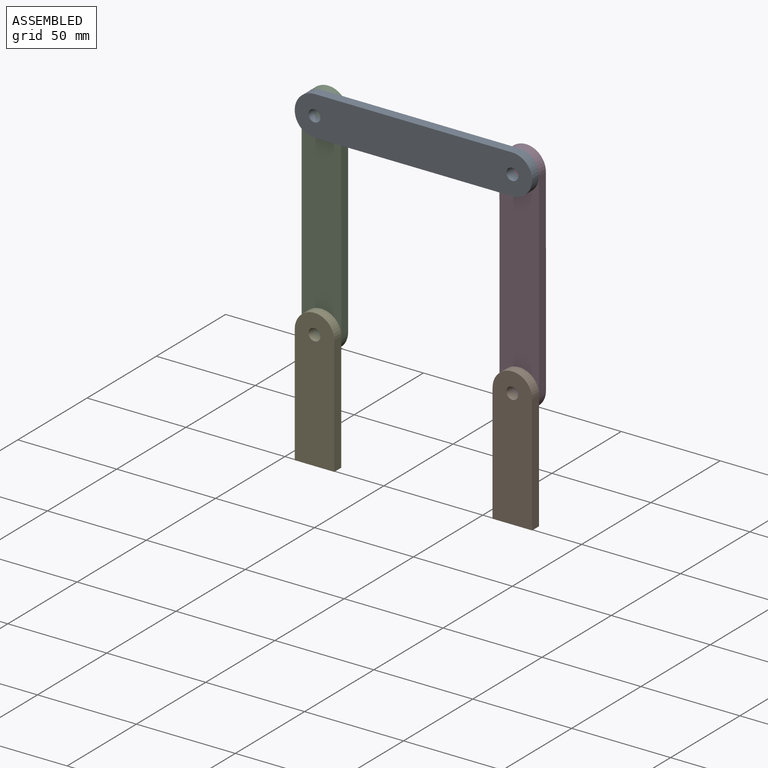
[diagram: assembled view]
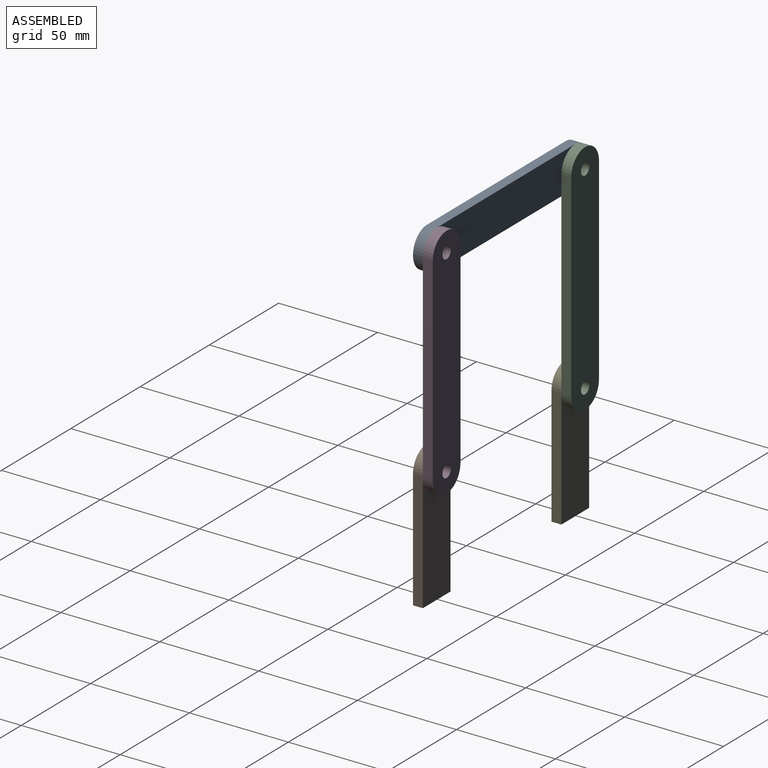
[diagram: assembled view, second angle]
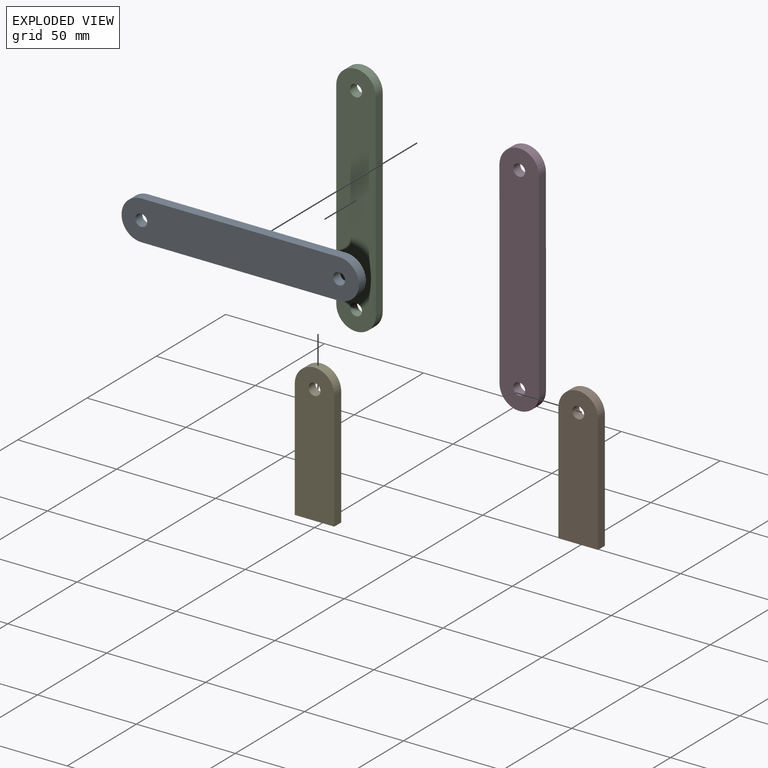
[diagram: exploded view]
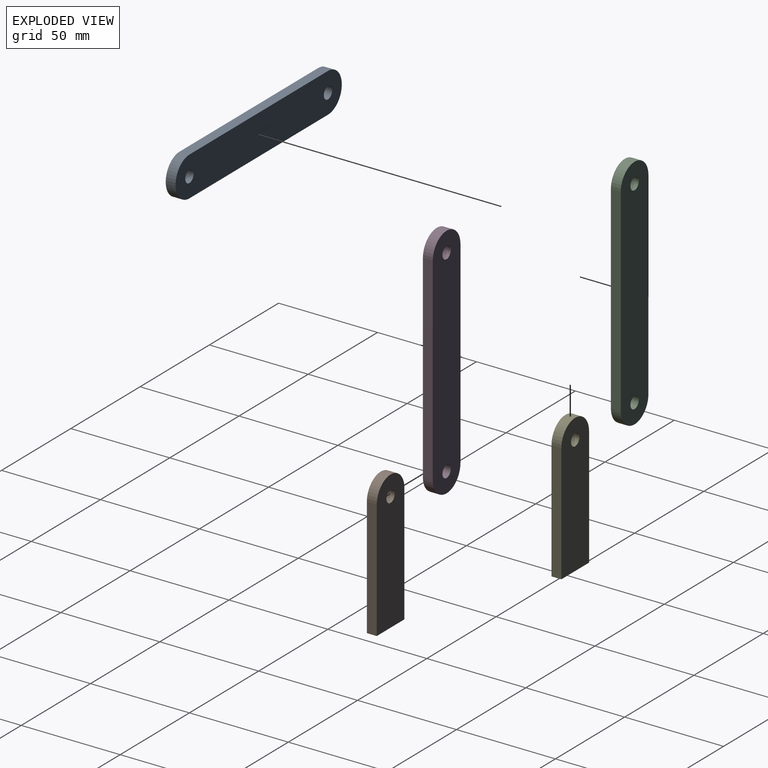
[diagram: exploded view, second angle]
ASSEMBLY  parts=5 mates=4
PART A: 8 faces, bbox 20x5x120 mm
  f0: plane 100x5mm, normal (1,0,0), area 500mm2, adj f1,f5,f6,f7
  f1: cylinder r=10mm len=20mm, axis (0,1,0), area 157.1mm2, adj f0,f2,f6,f7
  f2: plane 100x5mm, normal (-1,0,0), area 500mm2, adj f1,f5,f6,f7
  f3: cylinder r=3mm len=6mm, axis (0,1,0), area 94.2mm2, adj f6,f7
  f4: cylinder r=3mm len=6mm, axis (0,1,0), area 94.2mm2, adj f6,f7
  f5: cylinder r=10mm len=20mm, axis (0,1,0), area 157.1mm2, adj f0,f2,f6,f7
  f6: plane 120x20mm, normal (0,-1,0), area 2257.6mm2, adj f0,f1,f2,f3,f4,f5
  f7: plane 120x20mm, normal (0,1,0), area 2257.6mm2, adj f0,f1,f2,f3,f4,f5
PART B: 7 faces, bbox 20x5x70 mm
  f0: plane 20x5mm, normal (0,0,-1), area 100mm2, adj f1,f3,f5,f6
  f1: plane 60x5mm, normal (1,0,0), area 300mm2, adj f0,f2,f5,f6
  f2: cylinder r=10mm len=20mm, axis (0,1,0), area 157.1mm2, adj f1,f3,f5,f6
  f3: plane 60x5mm, normal (-1,0,0), area 300mm2, adj f0,f2,f5,f6
  f4: cylinder r=3mm len=6mm, axis (0,1,0), area 94.2mm2, adj f5,f6
  f5: plane 70x20mm, normal (0,-1,0), area 1328.8mm2, adj f0,f1,f2,f3,f4
  f6: plane 70x20mm, normal (0,1,0), area 1328.8mm2, adj f0,f1,f2,f3,f4
PART C: same geometry as A
PART D: same geometry as A
PART E: same geometry as B
PLACE A rot(axis=(0,-1,0),90deg) t=(-75.34,5,160)mm
PLACE B t=(100,5,30)mm
PLACE C rot(axis=(0,-1,0),0deg) t=(-0.04,10,235.32)mm
PLACE D rot(axis=(0,-1,0),0deg) t=(99.96,10,235.32)mm
PLACE E t=(0,5,30)mm
MATE revolute A.f4 <-> D.f1  axis (0,1,0) through (99.97,5,160)mm
MATE revolute D.f4 <-> B.f2  axis (0,-1,0) through (100,5,60)mm
MATE revolute A.f1 <-> C.f1  axis (0,1,0) through (-0.03,5,160)mm
MATE revolute C.f4 <-> E.f2  axis (0,-1,0) through (0,5,60)mm
